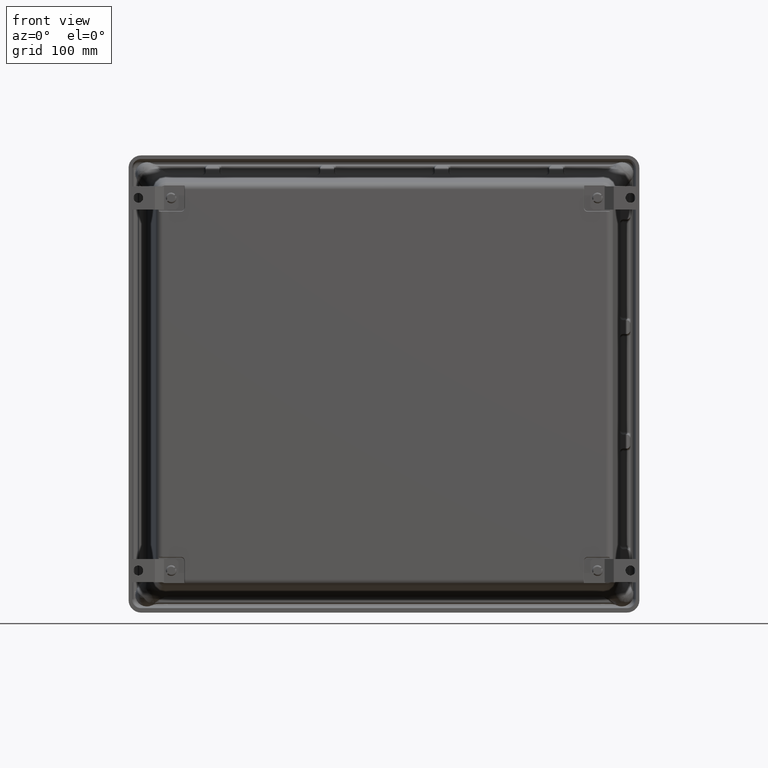
[diagram: clean part render]
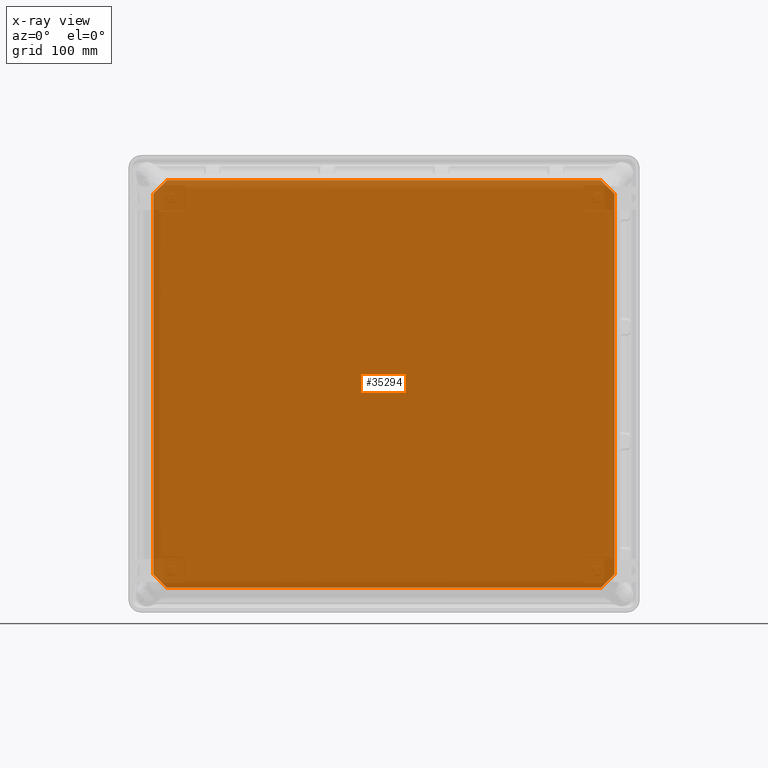
[diagram: x-ray — body ghosted, one internal face saturated and labeled with its STEP entity id]
A machine part, front view, then the same camera in x-ray: the body is ghosted and one INTERNAL B-rep face — a face not visible from any outside direction — is saturated and labeled: STEP entity #35294.
In plain terms, the highlighted planar face has unit normal (0, 1, 0).
Its self-contained STEP definition (entity closure, byte-faithful):
#426 = EDGE_CURVE ( 'NONE', #31291, #35330, #26201, .T. ) ;
#441 = CARTESIAN_POINT ( 'NONE',  ( -8.060707589338404600, 0.8700000000000000000, 6.651746961609519300 ) ) ;
#475 = VERTEX_POINT ( 'NONE', #39017 ) ;
#640 = DIRECTION ( 'NONE',  ( -1.000000000000000000, 0.0000000000000000000, 1.434982531143407700E-016 ) ) ;
#735 = CARTESIAN_POINT ( 'NONE',  ( -7.592593360690314000, 0.8700000000000000000, 7.121160391196487400 ) ) ;
#1560 = EDGE_CURVE ( 'NONE', #24426, #42461, #43208, .T. ) ;
#1608 = CARTESIAN_POINT ( 'NONE',  ( 8.063072769686824500, 0.8700000000000000000, -6.639871492507481300 ) ) ;
#1699 = VERTEX_POINT ( 'NONE', #18400 ) ;
#1809 = VECTOR ( 'NONE', #12277, 39.37007874015748100 ) ;
#2249 = VERTEX_POINT ( 'NONE', #26290 ) ;
#2434 = CARTESIAN_POINT ( 'NONE',  ( -7.576977386210969300, 0.8700000000000000000, 7.125072769686827500 ) ) ;
#2569 = EDGE_LOOP ( 'NONE', ( #21111, #13066, #6328, #34555, #27578, #42295, #36590, #21247, #22460, #22683, #6710, #21469, #8809, #30916, #31105, #5767, #43243, #28092, #27563, #45264, #38162, #40400, #40605, #34136 ) ) ;
#2705 = CARTESIAN_POINT ( 'NONE',  ( -7.598872796662315700, 0.8700000000000000000, 7.116016002790000300 ) ) ;
#3078 = PLANE ( 'NONE',  #37479 ) ;
#3209 = CARTESIAN_POINT ( 'NONE',  ( 7.588824697932349000, 0.8700000000000000000, 7.122719252136201700 ) ) ;
#3312 = CARTESIAN_POINT ( 'NONE',  ( -8.060707589338404600, 0.8700000000000000000, 6.651746961609519300 ) ) ;
#3378 = VERTEX_POINT ( 'NONE', #1608 ) ;
#3646 =( BOUNDED_CURVE ( )  B_SPLINE_CURVE ( 3, ( #15953, #33235, #43887, #23014 ),
 .UNSPECIFIED., .F., .F. ) 
 B_SPLINE_CURVE_WITH_KNOTS ( ( 4, 4 ),
 ( 5.891040865609173900, 6.283185307179593300 ),
 .UNSPECIFIED. ) 
 CURVE ( )  GEOMETRIC_REPRESENTATION_ITEM ( )  RATIONAL_B_SPLINE_CURVE ( ( 1.000000000000000000, 0.9872262300992085100, 0.9872262300992085100, 1.000000000000000000 ) ) 
 REPRESENTATION_ITEM ( '' )  );
#3653 = CARTESIAN_POINT ( 'NONE',  ( 8.053972901588327500, 0.8700000000000000000, 6.661810004160505700 ) ) ;
#3696 = CARTESIAN_POINT ( 'NONE',  ( 8.062274123463597100, 0.8699999999999998800, 6.647970266520281300 ) ) ;
#3778 = LINE ( 'NONE', #26531, #13145 ) ;
#4079 = LINE ( 'NONE', #40061, #30945 ) ;
#4153 = CARTESIAN_POINT ( 'NONE',  ( -8.495999999999996900, 0.8700000000000000000, -7.125072769686827500 ) ) ;
#4171 = LINE ( 'NONE', #21712, #21788 ) ;
#4354 = EDGE_CURVE ( 'NONE', #26006, #31375, #14961, .T. ) ;
#4841 = VECTOR ( 'NONE', #33876, 39.37007874015748100 ) ;
#5289 = VERTEX_POINT ( 'NONE', #20902 ) ;
#5591 = VERTEX_POINT ( 'NONE', #11053 ) ;
#5740 = CARTESIAN_POINT ( 'NONE',  ( -7.592593360690309500, 0.8700000000000000000, -7.121160391196487400 ) ) ;
#5767 = ORIENTED_EDGE ( 'NONE', *, *, #7021, .T. ) ;
#5979 = VERTEX_POINT ( 'NONE', #13505 ) ;
#6072 = EDGE_CURVE ( 'NONE', #5979, #5591, #40169, .T. ) ;
#6328 = ORIENTED_EDGE ( 'NONE', *, *, #44637, .T. ) ;
#6434 = CARTESIAN_POINT ( 'NONE',  ( -8.495999999999998700, 0.8700000000000000000, 7.558000000000000700 ) ) ;
#6532 = CARTESIAN_POINT ( 'NONE',  ( -7.576977386210964800, 0.8700000000000000000, -7.125072769686825700 ) ) ;
#6570 = DIRECTION ( 'NONE',  ( 0.0000000000000000000, -0.0000000000000000000, 1.000000000000000000 ) ) ;
#6710 = ORIENTED_EDGE ( 'NONE', *, *, #37634, .T. ) ;
#6976 =( BOUNDED_CURVE ( )  B_SPLINE_CURVE ( 3, ( #34368, #13390, #37874, #16940 ),
 .UNSPECIFIED., .F., .F. ) 
 B_SPLINE_CURVE_WITH_KNOTS ( ( 4, 4 ),
 ( 5.890057757203539500, 6.283185307179598700 ),
 .UNSPECIFIED. ) 
 CURVE ( )  GEOMETRIC_REPRESENTATION_ITEM ( )  RATIONAL_B_SPLINE_CURVE ( ( 1.000000000000000000, 0.9871623085928398200, 0.9871623085928398200, 1.000000000000000000 ) ) 
 REPRESENTATION_ITEM ( '' )  );
#7021 = EDGE_CURVE ( 'NONE', #2249, #24426, #31668, .T. ) ;
#7022 = EDGE_CURVE ( 'NONE', #19626, #32495, #28758, .T. ) ;
#7446 = EDGE_CURVE ( 'NONE', #475, #13265, #38262, .T. ) ;
#7762 = CARTESIAN_POINT ( 'NONE',  ( -7.595986064552110200, 0.8700000000000000000, 7.118897063520814000 ) ) ;
#7825 =( BOUNDED_CURVE ( )  B_SPLINE_CURVE ( 3, ( #38615, #14142, #3696, #28245 ),
 .UNSPECIFIED., .F., .F. ) 
 B_SPLINE_CURVE_WITH_KNOTS ( ( 4, 4 ),
 ( 5.890057757203524400, 6.283185307179573800 ),
 .UNSPECIFIED. ) 
 CURVE ( )  GEOMETRIC_REPRESENTATION_ITEM ( )  RATIONAL_B_SPLINE_CURVE ( ( 1.000000000000000000, 0.9871623085928403800, 0.9871623085928403800, 1.000000000000000000 ) ) 
 REPRESENTATION_ITEM ( '' )  );
#7867 = CARTESIAN_POINT ( 'NONE',  ( 8.063072769686826300, 0.8700000000000001100, -6.643960298082238800 ) ) ;
#7881 = CARTESIAN_POINT ( 'NONE',  ( -7.576977386210964800, 0.8700000000000000000, -7.125072769686825700 ) ) ;
#8534 = DIRECTION ( 'NONE',  ( 3.272654080460335200E-016, 0.0000000000000000000, 1.000000000000000000 ) ) ;
#8809 = ORIENTED_EDGE ( 'NONE', *, *, #22566, .T. ) ;
#9976 = CARTESIAN_POINT ( 'NONE',  ( -8.053972901588320400, 0.8700000000000000000, -6.661810004160504800 ) ) ;
#10061 =( BOUNDED_CURVE ( )  B_SPLINE_CURVE ( 3, ( #35639, #735, #7762, #32284 ),
 .UNSPECIFIED., .F., .F. ) 
 B_SPLINE_CURVE_WITH_KNOTS ( ( 4, 4 ),
 ( -7.105427357601001900E-015, 0.3921444415704120600 ),
 .UNSPECIFIED. ) 
 CURVE ( )  GEOMETRIC_REPRESENTATION_ITEM ( )  RATIONAL_B_SPLINE_CURVE ( ( 1.000000000000000000, 0.9872262300992085100, 0.9872262300992085100, 1.000000000000000000 ) ) 
 REPRESENTATION_ITEM ( '' )  );
#10201 = CARTESIAN_POINT ( 'NONE',  ( -8.063072769686822700, 0.8700000000000000000, -6.639871492507483100 ) ) ;
#10248 = CARTESIAN_POINT ( 'NONE',  ( 7.581055833612953000, 0.8699999999999998800, 7.125072769686823900 ) ) ;
#10382 = CARTESIAN_POINT ( 'NONE',  ( -8.053972901588325700, 0.8700000000000000000, 6.661810004160504800 ) ) ;
#10405 = CARTESIAN_POINT ( 'NONE',  ( 8.056866965231096200, 0.8700000000000001100, -6.658921626300916300 ) ) ;
#11053 = CARTESIAN_POINT ( 'NONE',  ( 7.576977386210971100, 0.8700000000000000000, 7.125072769686823900 ) ) ;
#11090 = LINE ( 'NONE', #43463, #1809 ) ;
#12277 = DIRECTION ( 'NONE',  ( 3.272654080460334300E-016, 0.0000000000000000000, -1.000000000000000000 ) ) ;
#12903 = CARTESIAN_POINT ( 'NONE',  ( 6.872604393876540200, 0.8700000000000000000, -7.840857552132180600 ) ) ;
#12909 = CARTESIAN_POINT ( 'NONE',  ( 7.585056035174372500, 0.8699999999999998800, -7.124278113075918700 ) ) ;
#13066 = ORIENTED_EDGE ( 'NONE', *, *, #4354, .T. ) ;
#13108 = CARTESIAN_POINT ( 'NONE',  ( 7.598872796662316600, 0.8700000000000000000, 7.116016002789996800 ) ) ;
#13113 =( BOUNDED_CURVE ( )  B_SPLINE_CURVE ( 3, ( #10201, #13744, #45217, #24345 ),
 .UNSPECIFIED., .F., .F. ) 
 B_SPLINE_CURVE_WITH_KNOTS ( ( 4, 4 ),
 ( 5.890057757203559100, 6.283185307179572900 ),
 .UNSPECIFIED. ) 
 CURVE ( )  GEOMETRIC_REPRESENTATION_ITEM ( )  RATIONAL_B_SPLINE_CURVE ( ( 1.000000000000000000, 0.9871623085928427100, 0.9871623085928427100, 1.000000000000000000 ) ) 
 REPRESENTATION_ITEM ( '' )  );
#13122 = EDGE_CURVE ( 'NONE', #35415, #14340, #25351, .T. ) ;
#13145 = VECTOR ( 'NONE', #23018, 39.37007874015748100 ) ;
#13265 = VERTEX_POINT ( 'NONE', #7881 ) ;
#13365 = CARTESIAN_POINT ( 'NONE',  ( -7.588824697932347300, 0.8700000000000000000, 7.122719252136204400 ) ) ;
#13390 = CARTESIAN_POINT ( 'NONE',  ( -8.056866965231099800, 0.8700000000000001100, 6.658921626300919000 ) ) ;
#13472 = CARTESIAN_POINT ( 'NONE',  ( -7.588824697932342800, 0.8700000000000000000, -7.122719252136204400 ) ) ;
#13505 = CARTESIAN_POINT ( 'NONE',  ( 7.588824697932349000, 0.8700000000000000000, 7.122719252136201700 ) ) ;
#13744 = CARTESIAN_POINT ( 'NONE',  ( -8.063072769686822700, 0.8700000000000001100, -6.643960298082242300 ) ) ;
#14142 = CARTESIAN_POINT ( 'NONE',  ( 8.063072769686829800, 0.8699999999999998800, 6.643960298082242300 ) ) ;
#14244 = CARTESIAN_POINT ( 'NONE',  ( 8.056866965231101600, 0.8700000000000000000, 6.658921626300919900 ) ) ;
#14340 = VERTEX_POINT ( 'NONE', #22574 ) ;
#14370 = EDGE_CURVE ( 'NONE', #37694, #5979, #3646, .T. ) ;
#14961 =( BOUNDED_CURVE ( )  B_SPLINE_CURVE ( 3, ( #2434, #23474, #44335, #26977 ),
 .UNSPECIFIED., .F., .F. ) 
 B_SPLINE_CURVE_WITH_KNOTS ( ( 4, 4 ),
 ( 5.891040865609148200, 6.283185307179579100 ),
 .UNSPECIFIED. ) 
 CURVE ( )  GEOMETRIC_REPRESENTATION_ITEM ( )  RATIONAL_B_SPLINE_CURVE ( ( 1.000000000000000000, 0.9872262300992078500, 0.9872262300992078500, 1.000000000000000000 ) ) 
 REPRESENTATION_ITEM ( '' )  );
#15636 = LINE ( 'NONE', #36942, #27143 ) ;
#15953 = CARTESIAN_POINT ( 'NONE',  ( 7.598872796662316600, 0.8700000000000000000, 7.116016002789996800 ) ) ;
#16436 = CARTESIAN_POINT ( 'NONE',  ( -8.059141055213210300, 0.8700000000000001100, -6.655523656698759900 ) ) ;
#16940 = CARTESIAN_POINT ( 'NONE',  ( -8.060707589338404600, 0.8700000000000000000, 6.651746961609519300 ) ) ;
#17014 = CARTESIAN_POINT ( 'NONE',  ( -7.585056035174373400, 0.8699999999999998800, -7.124278113075918700 ) ) ;
#17312 = CARTESIAN_POINT ( 'NONE',  ( -8.062274123463595300, 0.8700000000000001100, 6.647970266520280400 ) ) ;
#17666 = CARTESIAN_POINT ( 'NONE',  ( 8.059141055213212100, 0.8700000000000001100, -6.655523656698758100 ) ) ;
#17814 = CARTESIAN_POINT ( 'NONE',  ( 8.060707589338408100, 0.8700000000000000000, 6.651746961609521900 ) ) ;
#18257 = VERTEX_POINT ( 'NONE', #2705 ) ;
#18400 = CARTESIAN_POINT ( 'NONE',  ( -7.598872796662311300, 0.8700000000000000000, -7.116016002790000300 ) ) ;
#18827 = CARTESIAN_POINT ( 'NONE',  ( 7.595986064552104000, 0.8700000000000000000, -7.118897063520811300 ) ) ;
#19589 = CARTESIAN_POINT ( 'NONE',  ( -7.595986064552105800, 0.8700000000000000000, -7.118897063520814000 ) ) ;
#19626 = VERTEX_POINT ( 'NONE', #45246 ) ;
#19967 = VECTOR ( 'NONE', #42495, 39.37007874015748100 ) ;
#20276 = VECTOR ( 'NONE', #42400, 39.37007874015748100 ) ;
#20902 = CARTESIAN_POINT ( 'NONE',  ( 7.588824697932341900, 0.8700000000000000000, -7.122719252136201700 ) ) ;
#21111 = ORIENTED_EDGE ( 'NONE', *, *, #24994, .T. ) ;
#21193 = CARTESIAN_POINT ( 'NONE',  ( 8.053972901588320400, 0.8700000000000000000, -6.661810004160500400 ) ) ;
#21247 = ORIENTED_EDGE ( 'NONE', *, *, #31930, .T. ) ;
#21469 = ORIENTED_EDGE ( 'NONE', *, *, #7446, .T. ) ;
#21649 =( BOUNDED_CURVE ( )  B_SPLINE_CURVE ( 3, ( #26848, #44223, #12909, #37386 ),
 .UNSPECIFIED., .F., .F. ) 
 B_SPLINE_CURVE_WITH_KNOTS ( ( 4, 4 ),
 ( 5.891040865609148200, 6.283185307179579100 ),
 .UNSPECIFIED. ) 
 CURVE ( )  GEOMETRIC_REPRESENTATION_ITEM ( )  RATIONAL_B_SPLINE_CURVE ( ( 1.000000000000000000, 0.9872262300992078500, 0.9872262300992078500, 1.000000000000000000 ) ) 
 REPRESENTATION_ITEM ( '' )  );
#21712 = CARTESIAN_POINT ( 'NONE',  ( -8.495999999999998700, 0.8700000000000000000, 7.125072769686827500 ) ) ;
#21788 = VECTOR ( 'NONE', #640, 39.37007874015748100 ) ;
#21898 = CARTESIAN_POINT ( 'NONE',  ( 8.062274123463593500, 0.8700000000000001100, -6.647970266520278700 ) ) ;
#22163 = EDGE_CURVE ( 'NONE', #42461, #3378, #33914, .T. ) ;
#22460 = ORIENTED_EDGE ( 'NONE', *, *, #7022, .T. ) ;
#22496 = LINE ( 'NONE', #4153, #20276 ) ;
#22566 = EDGE_CURVE ( 'NONE', #13265, #43747, #22496, .T. ) ;
#22574 = CARTESIAN_POINT ( 'NONE',  ( -8.063072769686826300, 0.8700000000000000000, 6.639871492507483100 ) ) ;
#22683 = ORIENTED_EDGE ( 'NONE', *, *, #35553, .T. ) ;
#22833 = CARTESIAN_POINT ( 'NONE',  ( 8.060707589338402800, 0.8700000000000000000, -6.651746961609517500 ) ) ;
#23014 = CARTESIAN_POINT ( 'NONE',  ( 7.588824697932349000, 0.8700000000000000000, 7.122719252136201700 ) ) ;
#23018 = DIRECTION ( 'NONE',  ( 0.7078017259221957000, 0.0000000000000000000, -0.7064111527867895600 ) ) ;
#23180 = CARTESIAN_POINT ( 'NONE',  ( 8.053972901588320400, 0.8700000000000000000, -6.661810004160500400 ) ) ;
#23474 = CARTESIAN_POINT ( 'NONE',  ( -7.581055833612949400, 0.8699999999999998800, 7.125072769686827500 ) ) ;
#23496 = CARTESIAN_POINT ( 'NONE',  ( -8.060707589338401000, 0.8700000000000000000, -6.651746961609519300 ) ) ;
#24210 = CARTESIAN_POINT ( 'NONE',  ( 8.063072769686829800, 0.8700000000000000000, 6.639871492507484000 ) ) ;
#24252 = CARTESIAN_POINT ( 'NONE',  ( 7.585056035174380500, 0.8699999999999998800, 7.124278113075918700 ) ) ;
#24345 = CARTESIAN_POINT ( 'NONE',  ( -8.060707589338401000, 0.8700000000000000000, -6.651746961609519300 ) ) ;
#24426 = VERTEX_POINT ( 'NONE', #23180 ) ;
#24696 = CARTESIAN_POINT ( 'NONE',  ( 8.060707589338402800, 0.8700000000000000000, -6.651746961609517500 ) ) ;
#24994 = EDGE_CURVE ( 'NONE', #5591, #26006, #4171, .T. ) ;
#25351 =( BOUNDED_CURVE ( )  B_SPLINE_CURVE ( 3, ( #3312, #17312, #38236, #27860 ),
 .UNSPECIFIED., .F., .F. ) 
 B_SPLINE_CURVE_WITH_KNOTS ( ( 4, 4 ),
 ( 1.280553747030121400E-014, 0.3931275499760264500 ),
 .UNSPECIFIED. ) 
 CURVE ( )  GEOMETRIC_REPRESENTATION_ITEM ( )  RATIONAL_B_SPLINE_CURVE ( ( 1.000000000000000000, 0.9871623085928427100, 0.9871623085928427100, 1.000000000000000000 ) ) 
 REPRESENTATION_ITEM ( '' )  );
#25399 = CARTESIAN_POINT ( 'NONE',  ( 8.060707589338402800, 0.8700000000000000000, -6.651746961609517500 ) ) ;
#25714 = CARTESIAN_POINT ( 'NONE',  ( 7.588824697932341900, 0.8700000000000000000, -7.122719252136201700 ) ) ;
#26006 = VERTEX_POINT ( 'NONE', #35320 ) ;
#26201 =( BOUNDED_CURVE ( )  B_SPLINE_CURVE ( 3, ( #17814, #38720, #14244, #42221 ),
 .UNSPECIFIED., .F., .F. ) 
 B_SPLINE_CURVE_WITH_KNOTS ( ( 4, 4 ),
 ( -1.243449787580175300E-014, 0.3931275499760215600 ),
 .UNSPECIFIED. ) 
 CURVE ( )  GEOMETRIC_REPRESENTATION_ITEM ( )  RATIONAL_B_SPLINE_CURVE ( ( 1.000000000000000000, 0.9871623085928412600, 0.9871623085928412600, 1.000000000000000000 ) ) 
 REPRESENTATION_ITEM ( '' )  );
#26290 = CARTESIAN_POINT ( 'NONE',  ( 7.598872796662310400, 0.8700000000000000000, -7.116016002789997700 ) ) ;
#26531 = CARTESIAN_POINT ( 'NONE',  ( -15.38531234232425700, 0.8700000000000000000, 0.6551260192066091800 ) ) ;
#26848 = CARTESIAN_POINT ( 'NONE',  ( 7.576977386210963900, 0.8700000000000000000, -7.125072769686824800 ) ) ;
#26977 = CARTESIAN_POINT ( 'NONE',  ( -7.588824697932347300, 0.8700000000000000000, 7.122719252136204400 ) ) ;
#27002 = CARTESIAN_POINT ( 'NONE',  ( -8.053972901588320400, 0.8700000000000000000, -6.661810004160504800 ) ) ;
#27030 =( BOUNDED_CURVE ( )  B_SPLINE_CURVE ( 3, ( #44143, #19589, #5740, #30271 ),
 .UNSPECIFIED., .F., .F. ) 
 B_SPLINE_CURVE_WITH_KNOTS ( ( 4, 4 ),
 ( 5.891040865609173900, 6.283185307179593300 ),
 .UNSPECIFIED. ) 
 CURVE ( )  GEOMETRIC_REPRESENTATION_ITEM ( )  RATIONAL_B_SPLINE_CURVE ( ( 1.000000000000000000, 0.9872262300992085100, 0.9872262300992085100, 1.000000000000000000 ) ) 
 REPRESENTATION_ITEM ( '' )  );
#27143 = VECTOR ( 'NONE', #29931, 39.37007874015748100 ) ;
#27563 = ORIENTED_EDGE ( 'NONE', *, *, #37112, .T. ) ;
#27578 = ORIENTED_EDGE ( 'NONE', *, *, #41403, .T. ) ;
#27584 = CARTESIAN_POINT ( 'NONE',  ( -7.581055833612946800, 0.8699999999999998800, -7.125072769686827500 ) ) ;
#27630 = DIRECTION ( 'NONE',  ( 0.0000000000000000000, 1.000000000000000000, 0.0000000000000000000 ) ) ;
#27860 = CARTESIAN_POINT ( 'NONE',  ( -8.063072769686826300, 0.8700000000000000000, 6.639871492507483100 ) ) ;
#28092 = ORIENTED_EDGE ( 'NONE', *, *, #22163, .T. ) ;
#28245 = CARTESIAN_POINT ( 'NONE',  ( 8.060707589338408100, 0.8700000000000000000, 6.651746961609521900 ) ) ;
#28758 =( BOUNDED_CURVE ( )  B_SPLINE_CURVE ( 3, ( #23496, #16436, #37379, #27002 ),
 .UNSPECIFIED., .F., .F. ) 
 B_SPLINE_CURVE_WITH_KNOTS ( ( 4, 4 ),
 ( -1.332267629550187800E-014, 0.3931275499760459900 ),
 .UNSPECIFIED. ) 
 CURVE ( )  GEOMETRIC_REPRESENTATION_ITEM ( )  RATIONAL_B_SPLINE_CURVE ( ( 1.000000000000000000, 0.9871623085928398200, 0.9871623085928398200, 1.000000000000000000 ) ) 
 REPRESENTATION_ITEM ( '' )  );
#29931 = DIRECTION ( 'NONE',  ( -0.7078017259221957000, 0.0000000000000000000, 0.7064111527867895600 ) ) ;
#30271 = CARTESIAN_POINT ( 'NONE',  ( -7.588824697932342800, 0.8700000000000000000, -7.122719252136204400 ) ) ;
#30916 = ORIENTED_EDGE ( 'NONE', *, *, #44311, .T. ) ;
#30945 = VECTOR ( 'NONE', #8534, 39.37007874015748100 ) ;
#31105 = ORIENTED_EDGE ( 'NONE', *, *, #37525, .T. ) ;
#31231 = EDGE_CURVE ( 'NONE', #35330, #37694, #15636, .T. ) ;
#31291 = VERTEX_POINT ( 'NONE', #37237 ) ;
#31296 = CARTESIAN_POINT ( 'NONE',  ( -8.063072769686822700, 0.8700000000000000000, -6.639871492507483100 ) ) ;
#31375 = VERTEX_POINT ( 'NONE', #13365 ) ;
#31668 = LINE ( 'NONE', #12903, #4841 ) ;
#31930 = EDGE_CURVE ( 'NONE', #34838, #19626, #13113, .T. ) ;
#32284 = CARTESIAN_POINT ( 'NONE',  ( -7.598872796662315700, 0.8700000000000000000, 7.116016002790000300 ) ) ;
#32389 = CARTESIAN_POINT ( 'NONE',  ( 8.063072769686824500, 0.8700000000000000000, -6.639871492507481300 ) ) ;
#32495 = VERTEX_POINT ( 'NONE', #9976 ) ;
#32833 = EDGE_CURVE ( 'NONE', #14340, #34838, #11090, .T. ) ;
#33235 = CARTESIAN_POINT ( 'NONE',  ( 7.595986064552112000, 0.8700000000000000000, 7.118897063520811300 ) ) ;
#33876 = DIRECTION ( 'NONE',  ( 0.7078017259221957000, 0.0000000000000000000, 0.7064111527867895600 ) ) ;
#33914 =( BOUNDED_CURVE ( )  B_SPLINE_CURVE ( 3, ( #25399, #21898, #7867, #32389 ),
 .UNSPECIFIED., .F., .F. ) 
 B_SPLINE_CURVE_WITH_KNOTS ( ( 4, 4 ),
 ( 1.314977234853511600E-014, 0.3931275499760267200 ),
 .UNSPECIFIED. ) 
 CURVE ( )  GEOMETRIC_REPRESENTATION_ITEM ( )  RATIONAL_B_SPLINE_CURVE ( ( 1.000000000000000000, 0.9871623085928427100, 0.9871623085928427100, 1.000000000000000000 ) ) 
 REPRESENTATION_ITEM ( '' )  );
#34136 = ORIENTED_EDGE ( 'NONE', *, *, #6072, .T. ) ;
#34368 = CARTESIAN_POINT ( 'NONE',  ( -8.053972901588325700, 0.8700000000000000000, 6.661810004160504800 ) ) ;
#34555 = ORIENTED_EDGE ( 'NONE', *, *, #38231, .T. ) ;
#34761 = CARTESIAN_POINT ( 'NONE',  ( 7.576977386210971100, 0.8700000000000000000, 7.125072769686823900 ) ) ;
#34838 = VERTEX_POINT ( 'NONE', #31296 ) ;
#35294 = ADVANCED_FACE ( 'NONE', ( #39411 ), #3078, .F. ) ;
#35320 = CARTESIAN_POINT ( 'NONE',  ( -7.576977386210969300, 0.8700000000000000000, 7.125072769686827500 ) ) ;
#35330 = VERTEX_POINT ( 'NONE', #3653 ) ;
#35415 = VERTEX_POINT ( 'NONE', #441 ) ;
#35553 = EDGE_CURVE ( 'NONE', #32495, #1699, #3778, .T. ) ;
#35639 = CARTESIAN_POINT ( 'NONE',  ( -7.588824697932347300, 0.8700000000000000000, 7.122719252136204400 ) ) ;
#36075 = CARTESIAN_POINT ( 'NONE',  ( 7.592593360690308700, 0.8700000000000000000, -7.121160391196485600 ) ) ;
#36590 = ORIENTED_EDGE ( 'NONE', *, *, #32833, .T. ) ;
#36863 = VERTEX_POINT ( 'NONE', #10382 ) ;
#36942 = CARTESIAN_POINT ( 'NONE',  ( -0.6853809912668891200, 0.8700000000000000000, 15.38399424300226000 ) ) ;
#37112 = EDGE_CURVE ( 'NONE', #3378, #42196, #4079, .T. ) ;
#37237 = CARTESIAN_POINT ( 'NONE',  ( 8.060707589338408100, 0.8700000000000000000, 6.651746961609521900 ) ) ;
#37379 = CARTESIAN_POINT ( 'NONE',  ( -8.056866965231094500, 0.8700000000000001100, -6.658921626300919000 ) ) ;
#37386 = CARTESIAN_POINT ( 'NONE',  ( 7.588824697932341900, 0.8700000000000000000, -7.122719252136201700 ) ) ;
#37479 = AXIS2_PLACEMENT_3D ( 'NONE', #6434, #27630, #6570 ) ;
#37525 = EDGE_CURVE ( 'NONE', #5289, #2249, #43216, .T. ) ;
#37634 = EDGE_CURVE ( 'NONE', #1699, #475, #27030, .T. ) ;
#37694 = VERTEX_POINT ( 'NONE', #13108 ) ;
#37874 = CARTESIAN_POINT ( 'NONE',  ( -8.059141055213213900, 0.8700000000000001100, 6.655523656698759900 ) ) ;
#38162 = ORIENTED_EDGE ( 'NONE', *, *, #426, .T. ) ;
#38231 = EDGE_CURVE ( 'NONE', #18257, #36863, #38524, .T. ) ;
#38236 = CARTESIAN_POINT ( 'NONE',  ( -8.063072769686828100, 0.8700000000000001100, 6.643960298082242300 ) ) ;
#38262 =( BOUNDED_CURVE ( )  B_SPLINE_CURVE ( 3, ( #13472, #17014, #27584, #6532 ),
 .UNSPECIFIED., .F., .F. ) 
 B_SPLINE_CURVE_WITH_KNOTS ( ( 4, 4 ),
 ( 6.884697564678183100E-015, 0.3921444415704378200 ),
 .UNSPECIFIED. ) 
 CURVE ( )  GEOMETRIC_REPRESENTATION_ITEM ( )  RATIONAL_B_SPLINE_CURVE ( ( 1.000000000000000000, 0.9872262300992078500, 0.9872262300992078500, 1.000000000000000000 ) ) 
 REPRESENTATION_ITEM ( '' )  );
#38524 = LINE ( 'NONE', #38986, #19967 ) ;
#38615 = CARTESIAN_POINT ( 'NONE',  ( 8.063072769686829800, 0.8700000000000000000, 6.639871492507484000 ) ) ;
#38720 = CARTESIAN_POINT ( 'NONE',  ( 8.059141055213219200, 0.8700000000000000000, 6.655523656698761700 ) ) ;
#38986 = CARTESIAN_POINT ( 'NONE',  ( -7.827326957180828200, 0.8700000000000000000, 6.888010671663469300 ) ) ;
#39017 = CARTESIAN_POINT ( 'NONE',  ( -7.588824697932342800, 0.8700000000000000000, -7.122719252136204400 ) ) ;
#39411 = FACE_OUTER_BOUND ( 'NONE', #2569, .T. ) ;
#39586 = CARTESIAN_POINT ( 'NONE',  ( 7.576977386210963900, 0.8700000000000000000, -7.125072769686824800 ) ) ;
#40061 = CARTESIAN_POINT ( 'NONE',  ( 8.063072769686829800, 0.8700000000000000000, 7.557999999999995400 ) ) ;
#40169 =( BOUNDED_CURVE ( )  B_SPLINE_CURVE ( 3, ( #3209, #24252, #10248, #34761 ),
 .UNSPECIFIED., .F., .F. ) 
 B_SPLINE_CURVE_WITH_KNOTS ( ( 4, 4 ),
 ( 7.091238491618528700E-015, 0.3921444415704379300 ),
 .UNSPECIFIED. ) 
 CURVE ( )  GEOMETRIC_REPRESENTATION_ITEM ( )  RATIONAL_B_SPLINE_CURVE ( ( 1.000000000000000000, 0.9872262300992078500, 0.9872262300992078500, 1.000000000000000000 ) ) 
 REPRESENTATION_ITEM ( '' )  );
#40400 = ORIENTED_EDGE ( 'NONE', *, *, #31231, .T. ) ;
#40605 = ORIENTED_EDGE ( 'NONE', *, *, #14370, .T. ) ;
#41403 = EDGE_CURVE ( 'NONE', #36863, #35415, #6976, .T. ) ;
#42196 = VERTEX_POINT ( 'NONE', #24210 ) ;
#42221 = CARTESIAN_POINT ( 'NONE',  ( 8.053972901588327500, 0.8700000000000000000, 6.661810004160505700 ) ) ;
#42295 = ORIENTED_EDGE ( 'NONE', *, *, #13122, .T. ) ;
#42400 = DIRECTION ( 'NONE',  ( 1.000000000000000000, 0.0000000000000000000, 1.434982531143408700E-016 ) ) ;
#42461 = VERTEX_POINT ( 'NONE', #22833 ) ;
#42495 = DIRECTION ( 'NONE',  ( -0.7078017259221957000, 0.0000000000000000000, -0.7064111527867895600 ) ) ;
#42660 = EDGE_CURVE ( 'NONE', #42196, #31291, #7825, .T. ) ;
#43208 =( BOUNDED_CURVE ( )  B_SPLINE_CURVE ( 3, ( #21193, #10405, #17666, #24696 ),
 .UNSPECIFIED., .F., .F. ) 
 B_SPLINE_CURVE_WITH_KNOTS ( ( 4, 4 ),
 ( 5.890057757203540400, 6.283185307179599600 ),
 .UNSPECIFIED. ) 
 CURVE ( )  GEOMETRIC_REPRESENTATION_ITEM ( )  RATIONAL_B_SPLINE_CURVE ( ( 1.000000000000000000, 0.9871623085928398200, 0.9871623085928398200, 1.000000000000000000 ) ) 
 REPRESENTATION_ITEM ( '' )  );
#43216 =( BOUNDED_CURVE ( )  B_SPLINE_CURVE ( 3, ( #25714, #36075, #18827, #43229 ),
 .UNSPECIFIED., .F., .F. ) 
 B_SPLINE_CURVE_WITH_KNOTS ( ( 4, 4 ),
 ( -7.105427357601001900E-015, 0.3921444415704118900 ),
 .UNSPECIFIED. ) 
 CURVE ( )  GEOMETRIC_REPRESENTATION_ITEM ( )  RATIONAL_B_SPLINE_CURVE ( ( 1.000000000000000000, 0.9872262300992085100, 0.9872262300992085100, 1.000000000000000000 ) ) 
 REPRESENTATION_ITEM ( '' )  );
#43229 = CARTESIAN_POINT ( 'NONE',  ( 7.598872796662310400, 0.8700000000000000000, -7.116016002789997700 ) ) ;
#43243 = ORIENTED_EDGE ( 'NONE', *, *, #1560, .T. ) ;
#43463 = CARTESIAN_POINT ( 'NONE',  ( -8.063072769686828100, 0.8700000000000000000, 7.558000000000000700 ) ) ;
#43747 = VERTEX_POINT ( 'NONE', #39586 ) ;
#43887 = CARTESIAN_POINT ( 'NONE',  ( 7.592593360690316700, 0.8700000000000000000, 7.121160391196485600 ) ) ;
#44143 = CARTESIAN_POINT ( 'NONE',  ( -7.598872796662311300, 0.8700000000000000000, -7.116016002790000300 ) ) ;
#44223 = CARTESIAN_POINT ( 'NONE',  ( 7.581055833612945900, 0.8699999999999998800, -7.125072769686823900 ) ) ;
#44311 = EDGE_CURVE ( 'NONE', #43747, #5289, #21649, .T. ) ;
#44335 = CARTESIAN_POINT ( 'NONE',  ( -7.585056035174377900, 0.8699999999999998800, 7.124278113075918700 ) ) ;
#44637 = EDGE_CURVE ( 'NONE', #31375, #18257, #10061, .T. ) ;
#45217 = CARTESIAN_POINT ( 'NONE',  ( -8.062274123463591700, 0.8700000000000001100, -6.647970266520280400 ) ) ;
#45246 = CARTESIAN_POINT ( 'NONE',  ( -8.060707589338401000, 0.8700000000000000000, -6.651746961609519300 ) ) ;
#45264 = ORIENTED_EDGE ( 'NONE', *, *, #42660, .T. ) ;